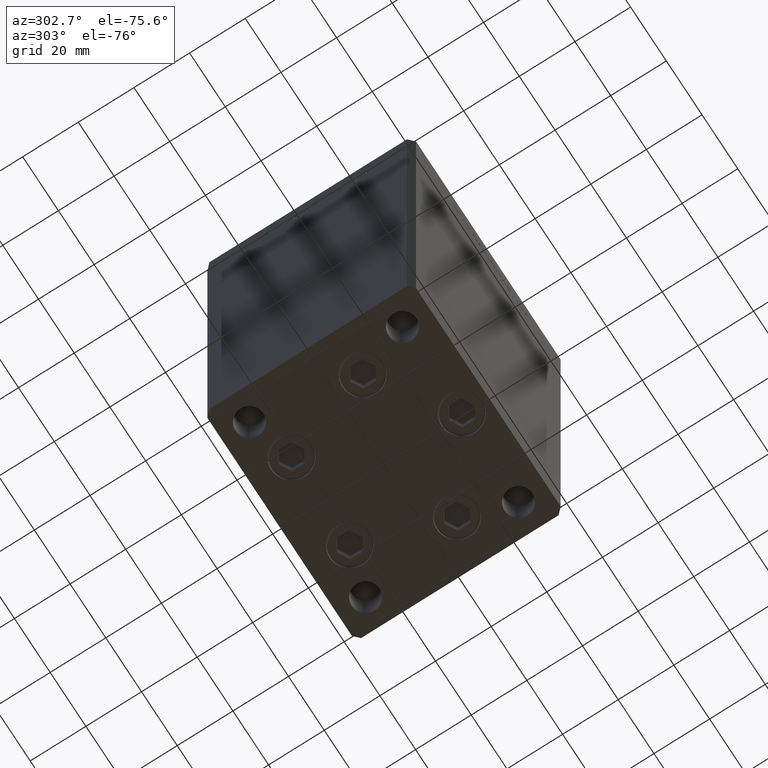
[diagram: clean part render]
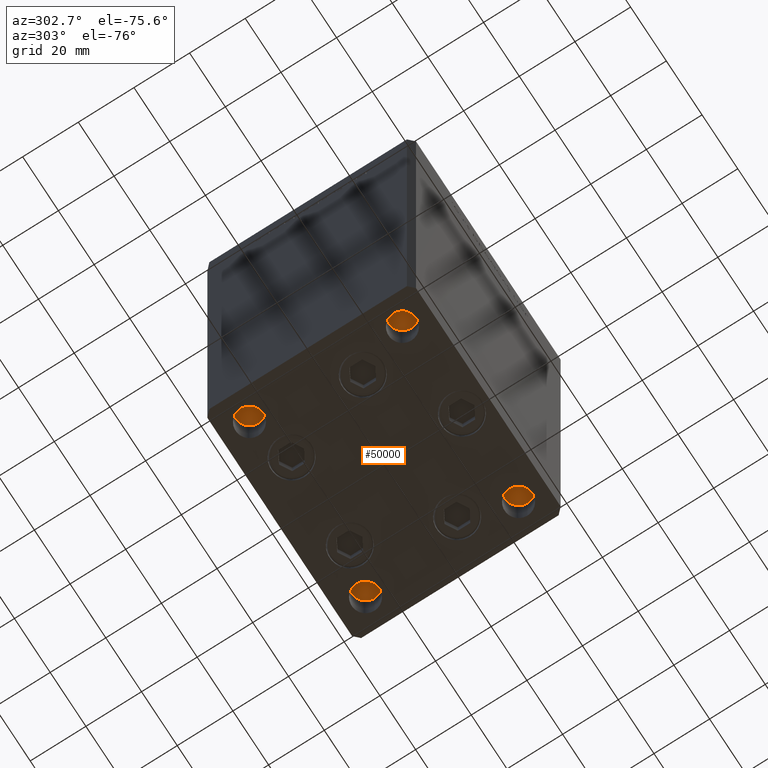
[diagram: same view with one face highlighted and labeled with its STEP entity id]
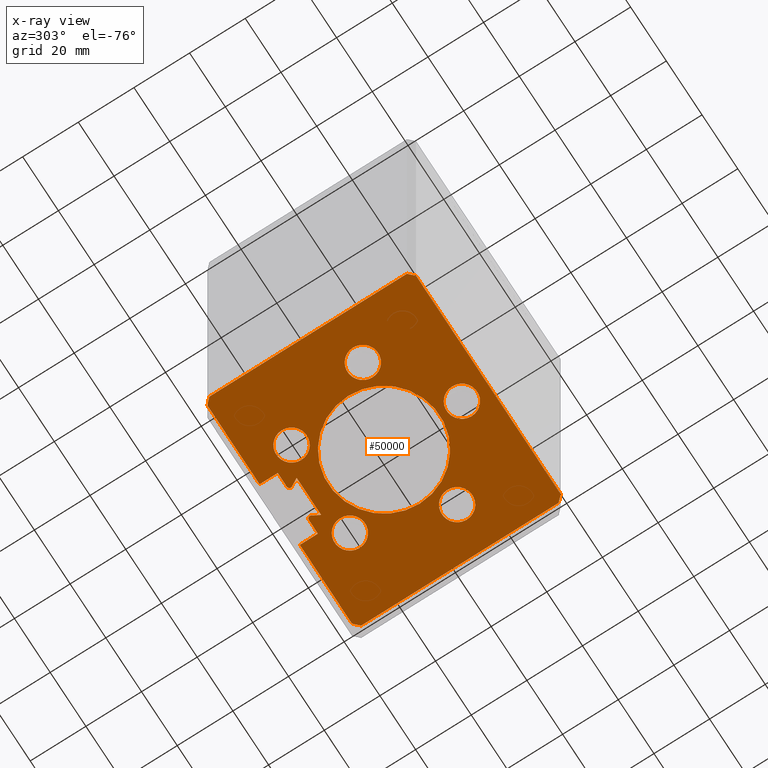
[diagram: x-ray of the same camera — body ghosted, the highlighted face saturated]
A machine part, auxiliary view. The second image highlights one B-rep face of the part: STEP entity #50000.
The next image is the same camera in x-ray: the body ghosted, the highlighted face saturated — about 0% of this face is hidden behind the body in this view.
In plain terms, the highlighted planar face has unit normal (0, 0, -1).
Its self-contained STEP definition (entity closure, byte-faithful):
#497 = EDGE_CURVE ( 'NONE', #21167, #22835, #39486, .T. ) ;
#550 = CARTESIAN_POINT ( 'NONE',  ( 6.876153656360465938, 26.99999999999986855, 0.000000000000000000 ) ) ;
#606 = FACE_OUTER_BOUND ( 'NONE', #14037, .T. ) ;
#713 = DIRECTION ( 'NONE',  ( 0.000000000000000000, 0.000000000000000000, -1.000000000000000000 ) ) ;
#887 = CARTESIAN_POINT ( 'NONE',  ( -40.50000000000000000, 37.50000000000000711, 0.000000000000000000 ) ) ;
#1010 = DIRECTION ( 'NONE',  ( -1.000000000000000000, 2.372271420139223331E-16, 0.000000000000000000 ) ) ;
#1436 = CARTESIAN_POINT ( 'NONE',  ( -6.183333333333999704, 30.06666666666599141, 0.000000000000000000 ) ) ;
#1438 = VERTEX_POINT ( 'NONE', #38125 ) ;
#1574 = DIRECTION ( 'NONE',  ( -1.000000000000000000, 0.000000000000000000, 0.000000000000000000 ) ) ;
#1621 = CIRCLE ( 'NONE', #18455, 0.9333333333340015914 ) ;
#1672 = CARTESIAN_POINT ( 'NONE',  ( 3.429011037612589276E-15, -28.00000000000000000, 0.000000000000000000 ) ) ;
#1761 = EDGE_CURVE ( 'NONE', #21147, #1938, #44058, .T. ) ;
#1938 = VERTEX_POINT ( 'NONE', #5185 ) ;
#1973 = CIRCLE ( 'NONE', #39003, 20.00000000000000000 ) ;
#2082 = CARTESIAN_POINT ( 'NONE',  ( 26.39865316429777664, -9.333333333333326820, 0.000000000000000000 ) ) ;
#2393 = VERTEX_POINT ( 'NONE', #45871 ) ;
#3036 = VERTEX_POINT ( 'NONE', #27778 ) ;
#3265 = CARTESIAN_POINT ( 'NONE',  ( -31.89865316429777664, -9.333333333333333925, 0.000000000000000000 ) ) ;
#3923 = CARTESIAN_POINT ( 'NONE',  ( 0.000000000000000000, 0.000000000000000000, 0.000000000000000000 ) ) ;
#4031 = FACE_BOUND ( 'NONE', #34271, .T. ) ;
#4265 = EDGE_CURVE ( 'NONE', #42714, #16071, #28042, .T. ) ;
#4301 = ORIENTED_EDGE ( 'NONE', *, *, #7150, .T. ) ;
#4699 = CARTESIAN_POINT ( 'NONE',  ( -11.25000000000000000, 37.50000000000000000, 0.000000000000000000 ) ) ;
#4747 = AXIS2_PLACEMENT_3D ( 'NONE', #35805, #39741, #51632 ) ;
#4926 = DIRECTION ( 'NONE',  ( -1.000000000000000000, 0.000000000000000000, 0.000000000000000000 ) ) ;
#4970 = VERTEX_POINT ( 'NONE', #33389 ) ;
#5185 = CARTESIAN_POINT ( 'NONE',  ( 20.89865316429778019, -9.333333333333326820, 0.000000000000000000 ) ) ;
#5311 = CARTESIAN_POINT ( 'NONE',  ( -11.25000000000000000, 30.99999999999999289, 0.000000000000000000 ) ) ;
#5340 = AXIS2_PLACEMENT_3D ( 'NONE', #39843, #8204, #47769 ) ;
#5425 = CIRCLE ( 'NONE', #31545, 5.499999999999998224 ) ;
#6001 = DIRECTION ( 'NONE',  ( 1.000000000000000000, 0.000000000000000000, 0.000000000000000000 ) ) ;
#6087 = LINE ( 'NONE', #38000, #21484 ) ;
#6591 = DIRECTION ( 'NONE',  ( -0.000000000000000000, -0.000000000000000000, -1.000000000000000000 ) ) ;
#6671 = AXIS2_PLACEMENT_3D ( 'NONE', #47487, #39817, #7922 ) ;
#6930 = ORIENTED_EDGE ( 'NONE', *, *, #26107, .F. ) ;
#7150 = EDGE_CURVE ( 'NONE', #25528, #52087, #26371, .T. ) ;
#7387 = VECTOR ( 'NONE', #50689, 1000.000000000000114 ) ;
#7399 = ORIENTED_EDGE ( 'NONE', *, *, #25851, .T. ) ;
#7468 = EDGE_CURVE ( 'NONE', #22239, #47110, #26579, .T. ) ;
#7704 = CARTESIAN_POINT ( 'NONE',  ( -6.876153656360465938, 26.99999999999986855, 0.000000000000000000 ) ) ;
#7922 = DIRECTION ( 'NONE',  ( -1.000000000000000000, 0.000000000000000000, 0.000000000000000000 ) ) ;
#7996 = PLANE ( 'NONE',  #43279 ) ;
#8039 = CARTESIAN_POINT ( 'NONE',  ( 11.25000000000000000, 30.99999999999999289, 0.000000000000000000 ) ) ;
#8113 = EDGE_CURVE ( 'NONE', #16071, #21014, #12171, .T. ) ;
#8204 = DIRECTION ( 'NONE',  ( 0.000000000000000000, 0.000000000000000000, -1.000000000000000000 ) ) ;
#8229 = ORIENTED_EDGE ( 'NONE', *, *, #41577, .T. ) ;
#8368 = EDGE_CURVE ( 'NONE', #1438, #19501, #43752, .T. ) ;
#8422 = EDGE_CURVE ( 'NONE', #45177, #3036, #1973, .T. ) ;
#8514 = FACE_BOUND ( 'NONE', #33526, .T. ) ;
#8817 = EDGE_CURVE ( 'NONE', #12902, #20767, #19666, .T. ) ;
#8876 = CARTESIAN_POINT ( 'NONE',  ( -42.50000000000000711, 35.50000000000001421, 0.000000000000000000 ) ) ;
#9161 = AXIS2_PLACEMENT_3D ( 'NONE', #12850, #33147, #13385 ) ;
#9266 = CIRCLE ( 'NONE', #47165, 5.499999999999998224 ) ;
#9843 = VECTOR ( 'NONE', #14152, 1000.000000000000000 ) ;
#10116 = ORIENTED_EDGE ( 'NONE', *, *, #8817, .F. ) ;
#10262 = VERTEX_POINT ( 'NONE', #41668 ) ;
#10311 = ORIENTED_EDGE ( 'NONE', *, *, #14949, .F. ) ;
#10368 = DIRECTION ( 'NONE',  ( 0.000000000000000000, 0.000000000000000000, -1.000000000000000000 ) ) ;
#10384 = EDGE_LOOP ( 'NONE', ( #27029, #22227 ) ) ;
#11164 = LINE ( 'NONE', #43822, #28415 ) ;
#11308 = VECTOR ( 'NONE', #21409, 1000.000000000000000 ) ;
#11445 = ORIENTED_EDGE ( 'NONE', *, *, #1761, .F. ) ;
#11618 = VECTOR ( 'NONE', #1010, 1000.000000000000000 ) ;
#11962 = DIRECTION ( 'NONE',  ( -1.000000000000000000, 0.000000000000000000, -0.000000000000000000 ) ) ;
#12099 = DIRECTION ( 'NONE',  ( -2.931927001650941360E-16, -1.000000000000000000, 0.000000000000000000 ) ) ;
#12136 = CARTESIAN_POINT ( 'NONE',  ( -5.499999999999996447, -28.00000000000000000, 0.000000000000000000 ) ) ;
#12171 = LINE ( 'NONE', #550, #25555 ) ;
#12588 = CIRCLE ( 'NONE', #6671, 5.500000000000000000 ) ;
#12691 = EDGE_CURVE ( 'NONE', #21014, #25528, #6087, .T. ) ;
#12850 = CARTESIAN_POINT ( 'NONE',  ( 0.000000000000000000, 0.000000000000000000, 0.000000000000000000 ) ) ;
#12902 = VERTEX_POINT ( 'NONE', #12136 ) ;
#13385 = DIRECTION ( 'NONE',  ( 1.000000000000000000, 0.000000000000000000, 0.000000000000000000 ) ) ;
#13619 = EDGE_LOOP ( 'NONE', ( #22608, #28924 ) ) ;
#14037 = EDGE_LOOP ( 'NONE', ( #51825, #20421, #32490, #7399, #48769, #16702, #15313, #4301, #36233, #8229, #6930, #43956, #50457, #29381, #29290, #18443, #10311, #47494, #41615 ) ) ;
#14055 = DIRECTION ( 'NONE',  ( 1.000000000000000000, 0.000000000000000000, 0.000000000000000000 ) ) ;
#14103 = DIRECTION ( 'NONE',  ( 1.000000000000000000, 0.000000000000000000, 0.000000000000000000 ) ) ;
#14152 = DIRECTION ( 'NONE',  ( 1.000000000000000000, 0.000000000000000000, 0.000000000000000000 ) ) ;
#14449 = EDGE_CURVE ( 'NONE', #4970, #31926, #20645, .T. ) ;
#14831 = DIRECTION ( 'NONE',  ( -1.000000000000000000, 0.000000000000000000, 0.000000000000000000 ) ) ;
#14869 = DIRECTION ( 'NONE',  ( 0.7071067811865474617, -0.7071067811865474617, 0.000000000000000000 ) ) ;
#14897 = ORIENTED_EDGE ( 'NONE', *, *, #30274, .F. ) ;
#14949 = EDGE_CURVE ( 'NONE', #10262, #2393, #29963, .T. ) ;
#15313 = ORIENTED_EDGE ( 'NONE', *, *, #12691, .T. ) ;
#15574 = VERTEX_POINT ( 'NONE', #30540 ) ;
#15612 = ORIENTED_EDGE ( 'NONE', *, *, #32107, .F. ) ;
#15857 = CARTESIAN_POINT ( 'NONE',  ( -16.32291334290543361, 22.75000000000000000, 0.000000000000000000 ) ) ;
#16071 = VERTEX_POINT ( 'NONE', #7704 ) ;
#16160 = ORIENTED_EDGE ( 'NONE', *, *, #48112, .F. ) ;
#16222 = DIRECTION ( 'NONE',  ( 0.000000000000000000, 0.000000000000000000, -1.000000000000000000 ) ) ;
#16278 = AXIS2_PLACEMENT_3D ( 'NONE', #1672, #10368, #50188 ) ;
#16702 = ORIENTED_EDGE ( 'NONE', *, *, #8113, .T. ) ;
#16709 = CARTESIAN_POINT ( 'NONE',  ( 0.000000000000000000, 0.000000000000000000, 0.000000000000000000 ) ) ;
#16918 = ORIENTED_EDGE ( 'NONE', *, *, #44709, .F. ) ;
#17394 = CARTESIAN_POINT ( 'NONE',  ( -20.00000000000000000, 0.000000000000000000, 0.000000000000000000 ) ) ;
#17411 = DIRECTION ( 'NONE',  ( -1.000000000000000000, 0.000000000000000000, 0.000000000000000000 ) ) ;
#18116 = EDGE_CURVE ( 'NONE', #22835, #21167, #35096, .T. ) ;
#18182 = DIRECTION ( 'NONE',  ( 0.000000000000000000, 0.000000000000000000, -1.000000000000000000 ) ) ;
#18443 = ORIENTED_EDGE ( 'NONE', *, *, #25228, .F. ) ;
#18455 = AXIS2_PLACEMENT_3D ( 'NONE', #1436, #45729, #14103 ) ;
#19276 = CARTESIAN_POINT ( 'NONE',  ( 5.375042956467943611, 29.59999999999899245, 0.000000000000000000 ) ) ;
#19501 = VERTEX_POINT ( 'NONE', #34912 ) ;
#19540 = VERTEX_POINT ( 'NONE', #23306 ) ;
#19666 = CIRCLE ( 'NONE', #16278, 5.500000000000000000 ) ;
#20013 = CARTESIAN_POINT ( 'NONE',  ( 40.50000000000000000, 37.50000000000000711, 0.000000000000000000 ) ) ;
#20230 = CARTESIAN_POINT ( 'NONE',  ( -26.39865316429777664, -9.333333333333333925, 0.000000000000000000 ) ) ;
#20384 = FACE_BOUND ( 'NONE', #13619, .T. ) ;
#20421 = ORIENTED_EDGE ( 'NONE', *, *, #14449, .T. ) ;
#20491 = CARTESIAN_POINT ( 'NONE',  ( 21.82291334290542650, 22.75000000000000355, 0.000000000000000000 ) ) ;
#20645 = LINE ( 'NONE', #47803, #22353 ) ;
#20655 = DIRECTION ( 'NONE',  ( 0.000000000000000000, 0.000000000000000000, -1.000000000000000000 ) ) ;
#20683 = VECTOR ( 'NONE', #24979, 1000.000000000000000 ) ;
#20704 = CARTESIAN_POINT ( 'NONE',  ( -16.32291334290543361, 22.75000000000000000, 0.000000000000000000 ) ) ;
#20767 = VERTEX_POINT ( 'NONE', #33431 ) ;
#20814 = CARTESIAN_POINT ( 'NONE',  ( 6.183333333333999704, 30.99999999999999289, 0.000000000000000000 ) ) ;
#20917 = FACE_BOUND ( 'NONE', #49233, .T. ) ;
#20919 = DIRECTION ( 'NONE',  ( -0.000000000000000000, -0.000000000000000000, -1.000000000000000000 ) ) ;
#21014 = VERTEX_POINT ( 'NONE', #33372 ) ;
#21147 = VERTEX_POINT ( 'NONE', #34656 ) ;
#21167 = VERTEX_POINT ( 'NONE', #3265 ) ;
#21409 = DIRECTION ( 'NONE',  ( -0.000000000000000000, -1.000000000000000000, -0.000000000000000000 ) ) ;
#21465 = VERTEX_POINT ( 'NONE', #51211 ) ;
#21484 = VECTOR ( 'NONE', #49867, 1000.000000000000114 ) ;
#21736 = AXIS2_PLACEMENT_3D ( 'NONE', #46664, #6591, #49842 ) ;
#21777 = EDGE_CURVE ( 'NONE', #31621, #26656, #30572, .T. ) ;
#21812 = AXIS2_PLACEMENT_3D ( 'NONE', #20704, #16222, #44948 ) ;
#22149 = DIRECTION ( 'NONE',  ( -1.000000000000000000, 2.372271420139223331E-16, 0.000000000000000000 ) ) ;
#22227 = ORIENTED_EDGE ( 'NONE', *, *, #48874, .F. ) ;
#22239 = VERTEX_POINT ( 'NONE', #29608 ) ;
#22353 = VECTOR ( 'NONE', #28025, 1000.000000000000000 ) ;
#22374 = EDGE_CURVE ( 'NONE', #26656, #10262, #26444, .T. ) ;
#22608 = ORIENTED_EDGE ( 'NONE', *, *, #8422, .T. ) ;
#22744 = CARTESIAN_POINT ( 'NONE',  ( 11.25000000000000000, 30.99999999999999289, 0.000000000000000000 ) ) ;
#22835 = VERTEX_POINT ( 'NONE', #48206 ) ;
#23167 = CIRCLE ( 'NONE', #51804, 5.499999999999998224 ) ;
#23306 = CARTESIAN_POINT ( 'NONE',  ( -5.249999999999997335, 30.06666666666599141, 0.000000000000000000 ) ) ;
#23763 = DIRECTION ( 'NONE',  ( -1.000000000000000000, 0.000000000000000000, 0.000000000000000000 ) ) ;
#23895 = EDGE_CURVE ( 'NONE', #52087, #34563, #33661, .T. ) ;
#23933 = VECTOR ( 'NONE', #48482, 1000.000000000000114 ) ;
#24488 = CARTESIAN_POINT ( 'NONE',  ( 42.50000000000000711, 35.50000000000001421, 0.000000000000000000 ) ) ;
#24979 = DIRECTION ( 'NONE',  ( 2.931927001650941360E-16, -1.000000000000000000, 0.000000000000000000 ) ) ;
#25087 = CIRCLE ( 'NONE', #21736, 0.9333333333340015914 ) ;
#25228 = EDGE_CURVE ( 'NONE', #2393, #22239, #11164, .T. ) ;
#25528 = VERTEX_POINT ( 'NONE', #19276 ) ;
#25555 = VECTOR ( 'NONE', #27983, 1000.000000000000000 ) ;
#25578 = DIRECTION ( 'NONE',  ( 0.000000000000000000, 0.000000000000000000, -1.000000000000000000 ) ) ;
#25851 = EDGE_CURVE ( 'NONE', #19540, #42714, #25087, .T. ) ;
#26096 = CARTESIAN_POINT ( 'NONE',  ( 26.39865316429777664, -9.333333333333326820, 0.000000000000000000 ) ) ;
#26107 = EDGE_CURVE ( 'NONE', #1438, #21465, #32915, .T. ) ;
#26369 = CARTESIAN_POINT ( 'NONE',  ( -11.25000000000000000, 37.50000000000000000, 0.000000000000000000 ) ) ;
#26371 = CIRCLE ( 'NONE', #49929, 0.9333333333340015914 ) ;
#26444 = LINE ( 'NONE', #42512, #7387 ) ;
#26579 = LINE ( 'NONE', #37649, #38967 ) ;
#26656 = VERTEX_POINT ( 'NONE', #887 ) ;
#26672 = LINE ( 'NONE', #5311, #11308 ) ;
#26959 = DIRECTION ( 'NONE',  ( 0.000000000000000000, 1.000000000000000000, 0.000000000000000000 ) ) ;
#27029 = ORIENTED_EDGE ( 'NONE', *, *, #29271, .F. ) ;
#27778 = CARTESIAN_POINT ( 'NONE',  ( 20.00000000000000000, 2.449293598294706513E-15, 0.000000000000000000 ) ) ;
#27983 = DIRECTION ( 'NONE',  ( 1.000000000000000000, -0.000000000000000000, -0.000000000000000000 ) ) ;
#28025 = DIRECTION ( 'NONE',  ( 1.000000000000000000, -0.000000000000000000, -0.000000000000000000 ) ) ;
#28042 = LINE ( 'NONE', #51282, #49135 ) ;
#28079 = AXIS2_PLACEMENT_3D ( 'NONE', #2082, #25578, #17411 ) ;
#28415 = VECTOR ( 'NONE', #14869, 1000.000000000000114 ) ;
#28446 = DIRECTION ( 'NONE',  ( 0.7071067811865500152, -0.7071067811865451302, 0.000000000000000000 ) ) ;
#28782 = VERTEX_POINT ( 'NONE', #20491 ) ;
#28886 = EDGE_CURVE ( 'NONE', #3036, #45177, #31880, .T. ) ;
#28924 = ORIENTED_EDGE ( 'NONE', *, *, #28886, .T. ) ;
#29271 = EDGE_CURVE ( 'NONE', #45013, #15574, #52104, .T. ) ;
#29290 = ORIENTED_EDGE ( 'NONE', *, *, #7468, .F. ) ;
#29381 = ORIENTED_EDGE ( 'NONE', *, *, #52073, .T. ) ;
#29403 = EDGE_CURVE ( 'NONE', #31926, #19540, #1621, .T. ) ;
#29608 = CARTESIAN_POINT ( 'NONE',  ( -40.49999999999998579, -37.50000000000000711, 0.000000000000000000 ) ) ;
#29963 = LINE ( 'NONE', #8876, #20683 ) ;
#30101 = CARTESIAN_POINT ( 'NONE',  ( -6.183333333333999704, 30.99999999999999289, 0.000000000000000000 ) ) ;
#30274 = EDGE_CURVE ( 'NONE', #20767, #12902, #12588, .T. ) ;
#30540 = CARTESIAN_POINT ( 'NONE',  ( -10.82291334290543894, 22.75000000000000000, 0.000000000000000000 ) ) ;
#30572 = LINE ( 'NONE', #26369, #45176 ) ;
#31063 = AXIS2_PLACEMENT_3D ( 'NONE', #20230, #713, #4926 ) ;
#31545 = AXIS2_PLACEMENT_3D ( 'NONE', #31667, #47747, #14831 ) ;
#31621 = VERTEX_POINT ( 'NONE', #35413 ) ;
#31667 = CARTESIAN_POINT ( 'NONE',  ( 16.32291334290542650, 22.75000000000000355, 0.000000000000000000 ) ) ;
#31880 = CIRCLE ( 'NONE', #9161, 20.00000000000000000 ) ;
#31926 = VERTEX_POINT ( 'NONE', #30101 ) ;
#32098 = VECTOR ( 'NONE', #12099, 1000.000000000000000 ) ;
#32107 = EDGE_CURVE ( 'NONE', #1938, #21147, #9266, .T. ) ;
#32121 = LINE ( 'NONE', #24488, #32098 ) ;
#32264 = VECTOR ( 'NONE', #28446, 1000.000000000000114 ) ;
#32490 = ORIENTED_EDGE ( 'NONE', *, *, #29403, .T. ) ;
#32780 = FACE_BOUND ( 'NONE', #44072, .T. ) ;
#32915 = LINE ( 'NONE', #4699, #11618 ) ;
#33147 = DIRECTION ( 'NONE',  ( -0.000000000000000000, 0.000000000000000000, 1.000000000000000000 ) ) ;
#33166 = CIRCLE ( 'NONE', #5340, 5.499999999999998224 ) ;
#33372 = CARTESIAN_POINT ( 'NONE',  ( 6.876153656360465938, 26.99999999999986855, 0.000000000000000000 ) ) ;
#33389 = CARTESIAN_POINT ( 'NONE',  ( -11.25000000000000000, 30.99999999999999289, 0.000000000000000000 ) ) ;
#33431 = CARTESIAN_POINT ( 'NONE',  ( 5.500000000000003553, -28.00000000000000000, 0.000000000000000000 ) ) ;
#33526 = EDGE_LOOP ( 'NONE', ( #10116, #14897 ) ) ;
#33661 = LINE ( 'NONE', #42330, #9843 ) ;
#34271 = EDGE_LOOP ( 'NONE', ( #51034, #41241 ) ) ;
#34563 = VERTEX_POINT ( 'NONE', #8039 ) ;
#34656 = CARTESIAN_POINT ( 'NONE',  ( 31.89865316429777664, -9.333333333333326820, 0.000000000000000000 ) ) ;
#34864 = LINE ( 'NONE', #22744, #49001 ) ;
#34912 = CARTESIAN_POINT ( 'NONE',  ( 42.50000000000000711, 35.50000000000001421, 0.000000000000000000 ) ) ;
#35096 = CIRCLE ( 'NONE', #4747, 5.499999999999998224 ) ;
#35413 = CARTESIAN_POINT ( 'NONE',  ( -11.25000000000000000, 37.50000000000000000, 0.000000000000000000 ) ) ;
#35805 = CARTESIAN_POINT ( 'NONE',  ( -26.39865316429777664, -9.333333333333333925, 0.000000000000000000 ) ) ;
#35849 = DIRECTION ( 'NONE',  ( 1.000000000000000000, 0.000000000000000000, 0.000000000000000000 ) ) ;
#36233 = ORIENTED_EDGE ( 'NONE', *, *, #23895, .T. ) ;
#37649 = CARTESIAN_POINT ( 'NONE',  ( -40.49999999999998579, -37.50000000000000711, 0.000000000000000000 ) ) ;
#37933 = EDGE_CURVE ( 'NONE', #19501, #49676, #32121, .T. ) ;
#38000 = CARTESIAN_POINT ( 'NONE',  ( 6.876153656360465938, 26.99999999999986855, 0.000000000000000000 ) ) ;
#38125 = CARTESIAN_POINT ( 'NONE',  ( 40.50000000000000000, 37.50000000000000711, 0.000000000000000000 ) ) ;
#38967 = VECTOR ( 'NONE', #6001, 1000.000000000000000 ) ;
#39003 = AXIS2_PLACEMENT_3D ( 'NONE', #3923, #51675, #35849 ) ;
#39486 = CIRCLE ( 'NONE', #31063, 5.499999999999998224 ) ;
#39741 = DIRECTION ( 'NONE',  ( 0.000000000000000000, 0.000000000000000000, -1.000000000000000000 ) ) ;
#39817 = DIRECTION ( 'NONE',  ( 0.000000000000000000, 0.000000000000000000, -1.000000000000000000 ) ) ;
#39843 = CARTESIAN_POINT ( 'NONE',  ( 16.32291334290542650, 22.75000000000000355, 0.000000000000000000 ) ) ;
#40948 = FACE_BOUND ( 'NONE', #10384, .T. ) ;
#41241 = ORIENTED_EDGE ( 'NONE', *, *, #18116, .F. ) ;
#41577 = EDGE_CURVE ( 'NONE', #34563, #21465, #34864, .T. ) ;
#41615 = ORIENTED_EDGE ( 'NONE', *, *, #21777, .F. ) ;
#41668 = CARTESIAN_POINT ( 'NONE',  ( -42.50000000000000711, 35.50000000000001421, 0.000000000000000000 ) ) ;
#42330 = CARTESIAN_POINT ( 'NONE',  ( 6.183333333333999704, 30.99999999999999289, 0.000000000000000000 ) ) ;
#42512 = CARTESIAN_POINT ( 'NONE',  ( -40.50000000000000000, 37.50000000000000711, 0.000000000000000000 ) ) ;
#42714 = VERTEX_POINT ( 'NONE', #43688 ) ;
#42983 = CARTESIAN_POINT ( 'NONE',  ( -21.82291334290543361, 22.75000000000000000, 0.000000000000000000 ) ) ;
#43279 = AXIS2_PLACEMENT_3D ( 'NONE', #16709, #20655, #11962 ) ;
#43688 = CARTESIAN_POINT ( 'NONE',  ( -5.375042956467944499, 29.59999999999899245, 0.000000000000000000 ) ) ;
#43752 = LINE ( 'NONE', #20013, #32264 ) ;
#43822 = CARTESIAN_POINT ( 'NONE',  ( -42.49999999999998579, -35.50000000000000711, 0.000000000000000000 ) ) ;
#43956 = ORIENTED_EDGE ( 'NONE', *, *, #8368, .T. ) ;
#44058 = CIRCLE ( 'NONE', #28079, 5.499999999999998224 ) ;
#44072 = EDGE_LOOP ( 'NONE', ( #15612, #11445 ) ) ;
#44123 = DIRECTION ( 'NONE',  ( -0.5000000000000003331, -0.8660254037844383745, -0.000000000000000000 ) ) ;
#44709 = EDGE_CURVE ( 'NONE', #45882, #28782, #33166, .T. ) ;
#44948 = DIRECTION ( 'NONE',  ( -1.000000000000000000, 0.000000000000000000, 0.000000000000000000 ) ) ;
#45013 = VERTEX_POINT ( 'NONE', #42983 ) ;
#45176 = VECTOR ( 'NONE', #22149, 1000.000000000000000 ) ;
#45177 = VERTEX_POINT ( 'NONE', #17394 ) ;
#45729 = DIRECTION ( 'NONE',  ( -0.000000000000000000, -0.000000000000000000, -1.000000000000000000 ) ) ;
#45871 = CARTESIAN_POINT ( 'NONE',  ( -42.49999999999998579, -35.50000000000000711, 0.000000000000000000 ) ) ;
#45882 = VERTEX_POINT ( 'NONE', #47969 ) ;
#46664 = CARTESIAN_POINT ( 'NONE',  ( -6.183333333333999704, 30.06666666666599141, 0.000000000000000000 ) ) ;
#46829 = EDGE_CURVE ( 'NONE', #31621, #4970, #26672, .T. ) ;
#47110 = VERTEX_POINT ( 'NONE', #52023 ) ;
#47165 = AXIS2_PLACEMENT_3D ( 'NONE', #26096, #18182, #1574 ) ;
#47487 = CARTESIAN_POINT ( 'NONE',  ( 3.429011037612589276E-15, -28.00000000000000000, 0.000000000000000000 ) ) ;
#47494 = ORIENTED_EDGE ( 'NONE', *, *, #22374, .F. ) ;
#47747 = DIRECTION ( 'NONE',  ( 0.000000000000000000, 0.000000000000000000, -1.000000000000000000 ) ) ;
#47769 = DIRECTION ( 'NONE',  ( -1.000000000000000000, 0.000000000000000000, 0.000000000000000000 ) ) ;
#47803 = CARTESIAN_POINT ( 'NONE',  ( -6.183333333333999704, 30.99999999999999289, 0.000000000000000000 ) ) ;
#47969 = CARTESIAN_POINT ( 'NONE',  ( 10.82291334290543006, 22.75000000000000355, 0.000000000000000000 ) ) ;
#48112 = EDGE_CURVE ( 'NONE', #28782, #45882, #5425, .T. ) ;
#48206 = CARTESIAN_POINT ( 'NONE',  ( -20.89865316429778019, -9.333333333333333925, 0.000000000000000000 ) ) ;
#48482 = DIRECTION ( 'NONE',  ( -0.7071067811865474617, -0.7071067811865474617, 0.000000000000000000 ) ) ;
#48769 = ORIENTED_EDGE ( 'NONE', *, *, #4265, .T. ) ;
#48874 = EDGE_CURVE ( 'NONE', #15574, #45013, #23167, .T. ) ;
#49001 = VECTOR ( 'NONE', #26959, 1000.000000000000000 ) ;
#49135 = VECTOR ( 'NONE', #44123, 1000.000000000000114 ) ;
#49233 = EDGE_LOOP ( 'NONE', ( #16918, #16160 ) ) ;
#49676 = VERTEX_POINT ( 'NONE', #51357 ) ;
#49842 = DIRECTION ( 'NONE',  ( 1.000000000000000000, 0.000000000000000000, 0.000000000000000000 ) ) ;
#49867 = DIRECTION ( 'NONE',  ( -0.5000000000000003331, 0.8660254037844383745, 0.000000000000000000 ) ) ;
#49900 = CARTESIAN_POINT ( 'NONE',  ( 6.183333333333999704, 30.06666666666599141, 0.000000000000000000 ) ) ;
#49929 = AXIS2_PLACEMENT_3D ( 'NONE', #49900, #20919, #14055 ) ;
#50000 = ADVANCED_FACE ( 'NONE', ( #40948, #20917, #32780, #8514, #4031, #606, #20384 ), #7996, .T. ) ;
#50188 = DIRECTION ( 'NONE',  ( -1.000000000000000000, 0.000000000000000000, 0.000000000000000000 ) ) ;
#50457 = ORIENTED_EDGE ( 'NONE', *, *, #37933, .T. ) ;
#50689 = DIRECTION ( 'NONE',  ( -0.7071067811865500152, -0.7071067811865451302, 0.000000000000000000 ) ) ;
#51034 = ORIENTED_EDGE ( 'NONE', *, *, #497, .F. ) ;
#51211 = CARTESIAN_POINT ( 'NONE',  ( 11.25000000000000000, 37.50000000000000000, 0.000000000000000000 ) ) ;
#51282 = CARTESIAN_POINT ( 'NONE',  ( -6.876153656360465938, 26.99999999999986855, 0.000000000000000000 ) ) ;
#51357 = CARTESIAN_POINT ( 'NONE',  ( 42.49999999999998579, -35.50000000000000711, 0.000000000000000000 ) ) ;
#51632 = DIRECTION ( 'NONE',  ( -1.000000000000000000, 0.000000000000000000, 0.000000000000000000 ) ) ;
#51675 = DIRECTION ( 'NONE',  ( -0.000000000000000000, 0.000000000000000000, 1.000000000000000000 ) ) ;
#51725 = DIRECTION ( 'NONE',  ( 0.000000000000000000, 0.000000000000000000, -1.000000000000000000 ) ) ;
#51804 = AXIS2_PLACEMENT_3D ( 'NONE', #15857, #51725, #23763 ) ;
#51825 = ORIENTED_EDGE ( 'NONE', *, *, #46829, .T. ) ;
#51939 = LINE ( 'NONE', #52196, #23933 ) ;
#52023 = CARTESIAN_POINT ( 'NONE',  ( 40.49999999999998579, -37.50000000000000711, 0.000000000000000000 ) ) ;
#52073 = EDGE_CURVE ( 'NONE', #49676, #47110, #51939, .T. ) ;
#52087 = VERTEX_POINT ( 'NONE', #20814 ) ;
#52104 = CIRCLE ( 'NONE', #21812, 5.499999999999998224 ) ;
#52196 = CARTESIAN_POINT ( 'NONE',  ( 42.49999999999998579, -35.50000000000000711, 0.000000000000000000 ) ) ;